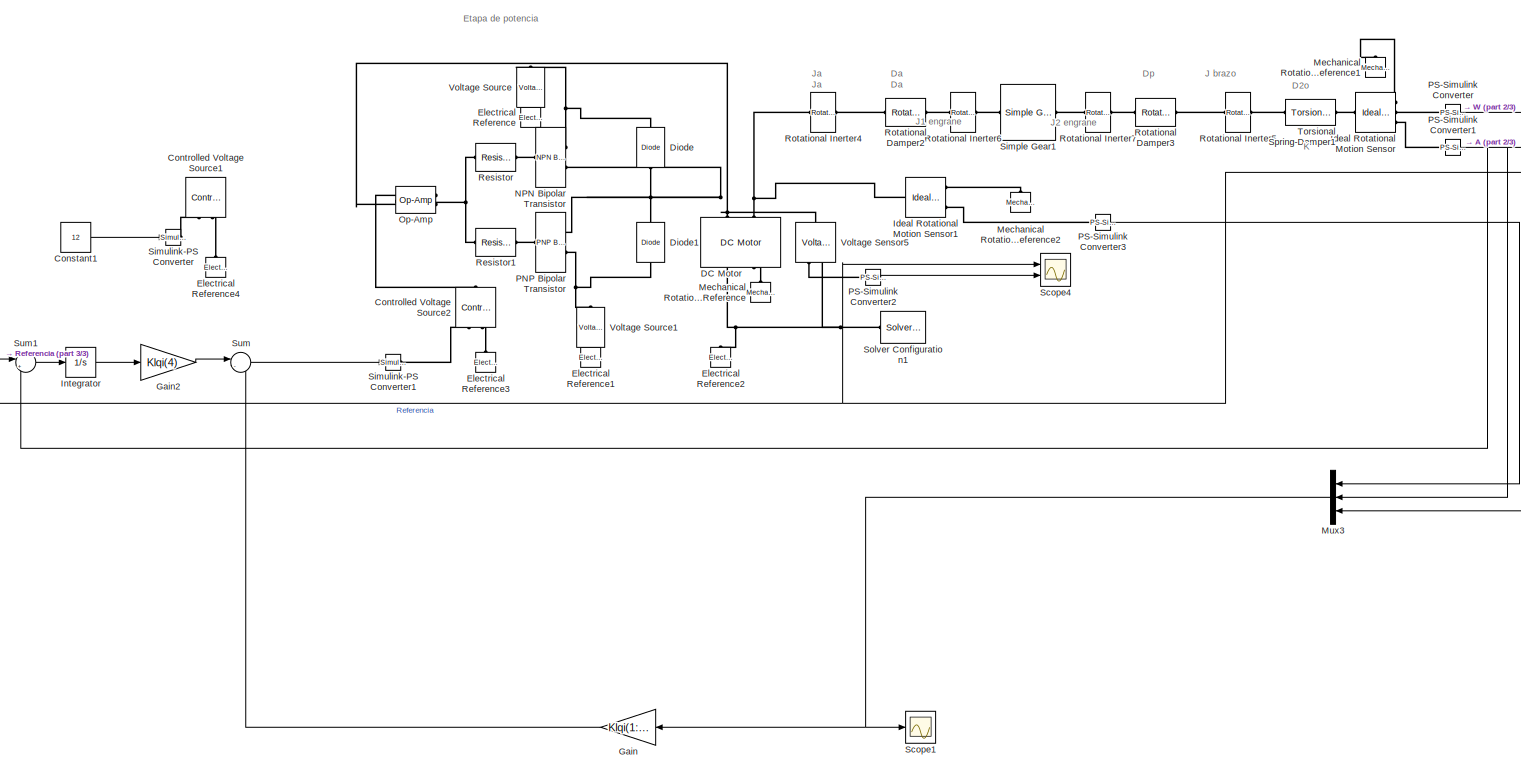
[diagram: root canvas - part 1/3, most of the canvas]
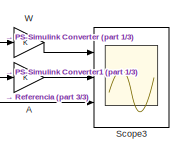
[diagram: root canvas - part 2/3, top right region]
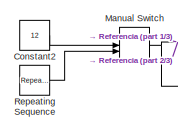
[diagram: root canvas - part 3/3, middle left region]
MODEL slx_32eb173f739a
KIND model
CONFIG AbsTol = auto
CONFIG EnableMultiTasking = off
CONFIG FixedStep = auto
CONFIG MaxStep = auto
CONFIG MinStep = auto
CONFIG RelTol = 1e-3
CONFIG SampleTimeConstraint = Unconstrained
CONFIG Solver = VariableStepAuto
CONFIG SolverName = VariableStepAuto
CONFIG StartTime = 0.0
CONFIG StopTime = 4
BLOCK [Gain] A
  OutDataTypeStr = Inherit: Inherit via internal rule
  ParamDataTypeStr = Inherit: Inherit via internal rule
  SaturateOnIntegerOverflow = off
BLOCK [Constant] Constant1
  Commented = on
  SampleTime = Ts
  Value = 12
BLOCK [Constant] Constant2
  SampleTime = Ts
  Value = 12
BLOCK [Reference] Controlled Voltage Source1  REF=fl_lib/Electrical/Electrical Sources/Controlled Voltage
Source
  Commented = on
  Ports = [0, 0, 0, 0, 0, 1, 2]
  SourceBlock = fl_lib/Electrical/Electrical Sources/Controlled Voltage\nSource
  SourceProductBaseCode = SS
  SourceProductName = Simscape
  SourceType = Controlled Voltage\nSource
BLOCK [Reference] Controlled Voltage Source2  REF=fl_lib/Electrical/Electrical Sources/Controlled Voltage
Source
  Ports = [0, 0, 0, 0, 0, 1, 2]
  SourceBlock = fl_lib/Electrical/Electrical Sources/Controlled Voltage\nSource
  SourceProductBaseCode = SS
  SourceProductName = Simscape
  SourceType = Controlled Voltage\nSource
BLOCK [Reference] DC Motor  REF=elec_lib/Actuators & Drivers/Rotational Actuators/DC Motor
  Ports = [0, 0, 0, 0, 0, 2, 2]
  SourceBlock = elec_lib/Actuators & Drivers/Rotational Actuators/DC Motor
  SourceProductBaseCode = SN
  SourceProductName = Simscape Electronics
  SourceType = DC Motor
BLOCK [Reference] Diode  REF=elec_lib/Semiconductor
Devices/Diode
  Ports = [0, 0, 0, 0, 0, 1, 1]
  SourceBlock = elec_lib/Semiconductor\nDevices/Diode
  SourceProductBaseCode = SN
  SourceProductName = Simscape Electronics
  SourceType = Diode
BLOCK [Reference] Diode1  REF=elec_lib/Semiconductor
Devices/Diode
  Ports = [0, 0, 0, 0, 0, 1, 1]
  SourceBlock = elec_lib/Semiconductor\nDevices/Diode
  SourceProductBaseCode = SN
  SourceProductName = Simscape Electronics
  SourceType = Diode
BLOCK [Reference] Electrical Reference  REF=fl_lib/Electrical/Electrical Elements/Electrical Reference
  Ports = [0, 0, 0, 0, 0, 1]
  SourceBlock = fl_lib/Electrical/Electrical Elements/Electrical Reference
  SourceProductBaseCode = SS
  SourceProductName = Simscape
  SourceType = Electrical Reference
BLOCK [Reference] Electrical Reference1  REF=fl_lib/Electrical/Electrical Elements/Electrical Reference
  Ports = [0, 0, 0, 0, 0, 1]
  SourceBlock = fl_lib/Electrical/Electrical Elements/Electrical Reference
  SourceProductBaseCode = SS
  SourceProductName = Simscape
  SourceType = Electrical Reference
BLOCK [Reference] Electrical Reference2  REF=fl_lib/Electrical/Electrical Elements/Electrical Reference
  Ports = [0, 0, 0, 0, 0, 1]
  SourceBlock = fl_lib/Electrical/Electrical Elements/Electrical Reference
  SourceProductBaseCode = SS
  SourceProductName = Simscape
  SourceType = Electrical Reference
BLOCK [Reference] Electrical Reference3  REF=fl_lib/Electrical/Electrical Elements/Electrical Reference
  Ports = [0, 0, 0, 0, 0, 1]
  SourceBlock = fl_lib/Electrical/Electrical Elements/Electrical Reference
  SourceProductBaseCode = SS
  SourceProductName = Simscape
  SourceType = Electrical Reference
BLOCK [Reference] Electrical Reference4  REF=fl_lib/Electrical/Electrical Elements/Electrical Reference
  Commented = on
  Ports = [0, 0, 0, 0, 0, 1]
  SourceBlock = fl_lib/Electrical/Electrical Elements/Electrical Reference
  SourceProductBaseCode = SS
  SourceProductName = Simscape
  SourceType = Electrical Reference
BLOCK [Gain] Gain
  Gain = Klqi(1:3)
  Multiplication = Matrix(K*u) (u vector)
  OutDataTypeStr = Inherit: Inherit via internal rule
  ParamDataTypeStr = Inherit: Inherit via internal rule
  SaturateOnIntegerOverflow = off
BLOCK [Gain] Gain2
  Gain = Klqi(4)
  OutDataTypeStr = Inherit: Inherit via internal rule
  ParamDataTypeStr = Inherit: Inherit via internal rule
  SaturateOnIntegerOverflow = off
BLOCK [Reference] Ideal Rotational Motion Sensor  REF=fl_lib/Mechanical/Mechanical Sensors/Ideal Rotational
Motion Sensor
  Ports = [0, 0, 0, 0, 0, 1, 3]
  SourceBlock = fl_lib/Mechanical/Mechanical Sensors/Ideal Rotational\nMotion Sensor
  SourceProductBaseCode = SS
  SourceProductName = Simscape
  SourceType = Ideal Rotational\nMotion Sensor
BLOCK [Reference] Ideal Rotational Motion Sensor1  REF=fl_lib/Mechanical/Mechanical Sensors/Ideal Rotational
Motion Sensor
  Ports = [0, 0, 0, 0, 0, 1, 3]
  SourceBlock = fl_lib/Mechanical/Mechanical Sensors/Ideal Rotational\nMotion Sensor
  SourceProductBaseCode = SS
  SourceProductName = Simscape
  SourceType = Ideal Rotational\nMotion Sensor
BLOCK [Integrator] Integrator
  Ports = [1, 1]
BLOCK [ManualSwitch] Manual Switch
BLOCK [Reference] Mechanical Rotational Reference  REF=fl_lib/Mechanical/Rotational Elements/Mechanical
Rotational Reference
  Ports = [0, 0, 0, 0, 0, 1]
  SourceBlock = fl_lib/Mechanical/Rotational Elements/Mechanical\nRotational Reference
  SourceProductBaseCode = SS
  SourceProductName = Simscape
  SourceType = Mechanical\nRotational Reference
BLOCK [Reference] Mechanical Rotational Reference1  REF=fl_lib/Mechanical/Rotational Elements/Mechanical
Rotational Reference
  Ports = [0, 0, 0, 0, 0, 1]
  SourceBlock = fl_lib/Mechanical/Rotational Elements/Mechanical\nRotational Reference
  SourceProductBaseCode = SS
  SourceProductName = Simscape
  SourceType = Mechanical\nRotational Reference
BLOCK [Reference] Mechanical Rotational Reference2  REF=fl_lib/Mechanical/Rotational Elements/Mechanical
Rotational Reference
  Ports = [0, 0, 0, 0, 0, 1]
  SourceBlock = fl_lib/Mechanical/Rotational Elements/Mechanical\nRotational Reference
  SourceProductBaseCode = SS
  SourceProductName = Simscape
  SourceType = Mechanical\nRotational Reference
BLOCK [Mux] Mux3
  DisplayOption = bar
  Inputs = 3
  Ports = [3, 1]
BLOCK [Reference] NPN Bipolar Transistor  REF=elec_lib/Semiconductor
Devices/NPN Bipolar
Transistor
  Ports = [0, 0, 0, 0, 0, 1, 2]
  SourceBlock = elec_lib/Semiconductor\nDevices/NPN Bipolar\nTransistor
  SourceProductBaseCode = SN
  SourceProductName = Simscape Electronics
  SourceType = NPN Bipolar\nTransistor
BLOCK [Reference] Op-Amp  REF=fl_lib/Electrical/Electrical Elements/Op-Amp
  Ports = [0, 0, 0, 0, 0, 2, 1]
  SourceBlock = fl_lib/Electrical/Electrical Elements/Op-Amp
  SourceProductBaseCode = SS
  SourceProductName = Simscape
  SourceType = Op-Amp
BLOCK [Reference] PNP Bipolar Transistor  REF=elec_lib/Semiconductor
Devices/PNP Bipolar
Transistor
  Ports = [0, 0, 0, 0, 0, 1, 2]
  SourceBlock = elec_lib/Semiconductor\nDevices/PNP Bipolar\nTransistor
  SourceProductBaseCode = SN
  SourceProductName = Simscape Electronics
  SourceType = PNP Bipolar\nTransistor
BLOCK [Reference] PS-Simulink Converter  REF=nesl_utility/PS-Simulink
Converter
  Ports = [0, 1, 0, 0, 0, 1]
  SourceBlock = nesl_utility/PS-Simulink\nConverter
  SourceProductBaseCode = SS
  SourceProductName = Simscape
  SourceType = PS-Simulink\nConverter
BLOCK [Reference] PS-Simulink Converter1  REF=nesl_utility/PS-Simulink
Converter
  Ports = [0, 1, 0, 0, 0, 1]
  SourceBlock = nesl_utility/PS-Simulink\nConverter
  SourceProductBaseCode = SS
  SourceProductName = Simscape
  SourceType = PS-Simulink\nConverter
BLOCK [Reference] PS-Simulink Converter2  REF=nesl_utility/PS-Simulink
Converter
  Ports = [0, 1, 0, 0, 0, 1]
  SourceBlock = nesl_utility/PS-Simulink\nConverter
  SourceProductBaseCode = SS
  SourceProductName = Simscape
  SourceType = PS-Simulink\nConverter
BLOCK [Reference] PS-Simulink Converter3  REF=nesl_utility/PS-Simulink
Converter
  Ports = [0, 1, 0, 0, 0, 1]
  SourceBlock = nesl_utility/PS-Simulink\nConverter
  SourceProductBaseCode = SS
  SourceProductName = Simscape
  SourceType = PS-Simulink\nConverter
BLOCK [Reference] Repeating Sequence  REF=simulink/Sources/Repeating
Sequence
  Ports = [0, 1]
  SourceBlock = simulink/Sources/Repeating\nSequence
  SourceProductBaseCode = SL
  SourceProductName = Simulink
  SourceType = Repeating table
BLOCK [Reference] Resistor  REF=elec_lib/Passive Devices/Resistor
  Ports = [0, 0, 0, 0, 0, 1, 1]
  SourceBlock = elec_lib/Passive Devices/Resistor
  SourceProductBaseCode = SN
  SourceProductName = Simscape Electronics
  SourceType = Resistor
BLOCK [Reference] Resistor1  REF=elec_lib/Passive Devices/Resistor
  Ports = [0, 0, 0, 0, 0, 1, 1]
  SourceBlock = elec_lib/Passive Devices/Resistor
  SourceProductBaseCode = SN
  SourceProductName = Simscape Electronics
  SourceType = Resistor
BLOCK [Reference] Rotational Damper2  REF=sdl_lib/Couplings & Drives/Springs & Dampers/Rotational Damper
  Ports = [0, 0, 0, 0, 0, 1, 1]
  SourceBlock = sdl_lib/Couplings & Drives/Springs & Dampers/Rotational Damper
  SourceProductBaseCode = LD
  SourceProductName = Simscape Driveline
  SourceType = Rotational Damper
BLOCK [Reference] Rotational Damper3  REF=sdl_lib/Couplings & Drives/Springs & Dampers/Rotational Damper
  Ports = [0, 0, 0, 0, 0, 1, 1]
  SourceBlock = sdl_lib/Couplings & Drives/Springs & Dampers/Rotational Damper
  SourceProductBaseCode = LD
  SourceProductName = Simscape Driveline
  SourceType = Rotational Damper
BLOCK [Reference] Rotational Inerter4  REF=fl_lib/Mechanical/Rotational Elements/Rotational Inerter
  Ports = [0, 0, 0, 0, 0, 1, 1]
  SourceBlock = fl_lib/Mechanical/Rotational Elements/Rotational Inerter
  SourceProductBaseCode = SS
  SourceProductName = Simscape
  SourceType = Rotational Inerter
BLOCK [Reference] Rotational Inerter5  REF=fl_lib/Mechanical/Rotational Elements/Rotational Inerter
  Ports = [0, 0, 0, 0, 0, 1, 1]
  SourceBlock = fl_lib/Mechanical/Rotational Elements/Rotational Inerter
  SourceProductBaseCode = SS
  SourceProductName = Simscape
  SourceType = Rotational Inerter
BLOCK [Reference] Rotational Inerter6  REF=fl_lib/Mechanical/Rotational Elements/Rotational Inerter
  Ports = [0, 0, 0, 0, 0, 1, 1]
  SourceBlock = fl_lib/Mechanical/Rotational Elements/Rotational Inerter
  SourceProductBaseCode = SS
  SourceProductName = Simscape
  SourceType = Rotational Inerter
BLOCK [Reference] Rotational Inerter7  REF=fl_lib/Mechanical/Rotational Elements/Rotational Inerter
  Ports = [0, 0, 0, 0, 0, 1, 1]
  SourceBlock = fl_lib/Mechanical/Rotational Elements/Rotational Inerter
  SourceProductBaseCode = SS
  SourceProductName = Simscape
  SourceType = Rotational Inerter
BLOCK [Scope] Scope1
  NumInputPorts = 1
  Ports = [1]
  ScopeSpecificationString = Simulink.scopes.TimeScopeBlockCfg('CurrentConfiguration', extmgr.ConfigurationSet(extmgr.Configuration('Core','General UI',true),extmgr.Configuration('Core','Source UI',true),extmgr.Configuration('Sources','WiredSimulink',true,'DataLoggingVariableName','ScopeData3'),extmgr.Configuration('Visuals','Time Domain',true,'SerializedDisplays',{struct('MinYLimReal','-6.32407','MaxYLimReal','37.22958','YLa...<+1528ch>
BLOCK [Scope] Scope3
  NumInputPorts = 3
  Ports = [3]
  ScopeSpecificationString = Simulink.scopes.TimeScopeBlockCfg('CurrentConfiguration', extmgr.ConfigurationSet(extmgr.Configuration('Core','General UI',true),extmgr.Configuration('Core','Source UI',true),extmgr.Configuration('Sources','WiredSimulink',true,'DataLoggingVariableName','ScopeData1','SampleTime','Ts'),extmgr.Configuration('Visuals','Time Domain',true,'SerializedDisplays',{struct('MinYLimReal','-1.5','MaxYLimReal','...<+1474ch>
BLOCK [Scope] Scope4
  NumInputPorts = 2
  Ports = [2]
  ScopeSpecificationString = Simulink.scopes.TimeScopeBlockCfg('CurrentConfiguration', extmgr.ConfigurationSet(extmgr.Configuration('Core','General UI',true),extmgr.Configuration('Core','Source UI',true),extmgr.Configuration('Sources','WiredSimulink',true),extmgr.Configuration('Visuals','Time Domain',true,'SerializedDisplays',{struct('MinYLimReal','-4938.73897','MaxYLimReal','44448.65071','YLabelReal','','MinYLimMag','  0.000...<+1436ch>
BLOCK [Reference] Simple Gear1  REF=sdl_lib/Gears/Simple Gear
  Ports = [0, 0, 0, 0, 0, 1, 1]
  SourceBlock = sdl_lib/Gears/Simple Gear
  SourceProductBaseCode = LD
  SourceProductName = Simscape Driveline
  SourceType = Simple Gear
BLOCK [Reference] Simulink-PS Converter  REF=nesl_utility/Simulink-PS
Converter
  Commented = on
  Ports = [1, 0, 0, 0, 0, 0, 1]
  SourceBlock = nesl_utility/Simulink-PS\nConverter
  SourceProductBaseCode = SS
  SourceProductName = Simscape
  SourceType = Simulink-PS\nConverter
BLOCK [Reference] Simulink-PS Converter1  REF=nesl_utility/Simulink-PS
Converter
  Ports = [1, 0, 0, 0, 0, 0, 1]
  SourceBlock = nesl_utility/Simulink-PS\nConverter
  SourceProductBaseCode = SS
  SourceProductName = Simscape
  SourceType = Simulink-PS\nConverter
BLOCK [Reference] Solver Configuration1  REF=nesl_utility/Solver
Configuration
  Ports = [0, 0, 0, 0, 0, 0, 1]
  SourceBlock = nesl_utility/Solver\nConfiguration
  SourceProductBaseCode = SS
  SourceProductName = Simscape
  SourceType = Solver\nConfiguration
BLOCK [Sum] Sum
  IconShape = round
  InputSameDT = off
  Inputs = |--
  OutDataTypeStr = Inherit: Inherit via internal rule
  Ports = [2, 1]
  SaturateOnIntegerOverflow = off
BLOCK [Sum] Sum1
  IconShape = round
  InputSameDT = off
  Inputs = |+-
  OutDataTypeStr = Inherit: Inherit via internal rule
  Ports = [2, 1]
  SaturateOnIntegerOverflow = off
BLOCK [Reference] Torsional Spring-Damper1  REF=sdl_lib/Couplings & Drives/Torsional
Spring-Damper
  Ports = [0, 0, 0, 0, 0, 1, 1]
  SourceBlock = sdl_lib/Couplings & Drives/Torsional\nSpring-Damper
  SourceProductBaseCode = LD
  SourceProductName = Simscape Driveline
  SourceType = Torsional\nSpring-Damper
BLOCK [Reference] Voltage Sensor5  REF=fl_lib/Electrical/Electrical Sensors/Voltage Sensor
  Ports = [0, 0, 0, 0, 0, 1, 2]
  SourceBlock = fl_lib/Electrical/Electrical Sensors/Voltage Sensor
  SourceProductBaseCode = SS
  SourceProductName = Simscape
  SourceType = Voltage Sensor
BLOCK [Reference] Voltage Source  REF=elec_lib/Sources/Voltage Source
  Ports = [0, 0, 0, 0, 0, 1, 1]
  SourceBlock = elec_lib/Sources/Voltage Source
  SourceProductBaseCode = SN
  SourceProductName = Simscape Electronics
  SourceType = Voltage Source
BLOCK [Reference] Voltage Source1  REF=elec_lib/Sources/Voltage Source
  Ports = [0, 0, 0, 0, 0, 1, 1]
  SourceBlock = elec_lib/Sources/Voltage Source
  SourceProductBaseCode = SN
  SourceProductName = Simscape Electronics
  SourceType = Voltage Source
BLOCK [Gain] W
  OutDataTypeStr = Inherit: Inherit via internal rule
  ParamDataTypeStr = Inherit: Inherit via internal rule
  SaturateOnIntegerOverflow = off
ANNOTATION (root): D2o
ANNOTATION (root): Da Da
ANNOTATION (root): Dp
ANNOTATION (root): Etapa de potencia
ANNOTATION (root): J brazo
ANNOTATION (root): J1 engrane
ANNOTATION (root): J2 engrane
ANNOTATION (root): Ja Ja
ANNOTATION (root): K
LINE A:1 -> Scope3:2
LINE Constant1:1 -> Simulink-PS Converter:1
LINE Constant2:1 -> Manual Switch:1
LINE Gain2:1 -> Sum:1
LINE Gain:1 -> Sum:2
LINE Integrator:1 -> Gain2:1
NET Manual Switch:1 -> Scope3:3, Scope4:1, Sum1:1
NET Mux3:1 -> Gain:1, Scope1:1
NET PS-Simulink Converter1:1 -> A:1, Mux3:2, Sum1:2
LINE PS-Simulink Converter2:1 -> Scope4:2
LINE PS-Simulink Converter3:1 -> Mux3:1
NET PS-Simulink Converter:1 -> Mux3:3, W:1
LINE Repeating Sequence:1 -> Manual Switch:2
LINE Sum1:1 -> Integrator:1
LINE Sum:1 -> Simulink-PS Converter1:1
LINE W:1 -> Scope3:1
PLINE Controlled Voltage Source1:RConn1 -- Simulink-PS Converter:RConn1
PLINE Controlled Voltage Source1:RConn2 -- Electrical Reference4:LConn1
PLINE Controlled Voltage Source2:LConn1 -- Op-Amp:LConn1
PLINE Controlled Voltage Source2:RConn1 -- Simulink-PS Converter1:RConn1
PLINE Controlled Voltage Source2:RConn2 -- Electrical Reference3:LConn1
PNET net1: DC Motor:LConn1 -- Diode1:RConn1 -- Diode:LConn1 -- NPN Bipolar Transistor:RConn2 -- Op-Amp:LConn2 -- PNP Bipolar Transistor:RConn1 -- Voltage Sensor5:LConn1
PNET net2: DC Motor:LConn2 -- Ideal Rotational Motion Sensor1:LConn1 -- Rotational Inerter4:LConn1
PNET net3: DC Motor:RConn1 -- Electrical Reference2:LConn1 -- Solver Configuration1:RConn1 -- Voltage Sensor5:RConn2
PLINE DC Motor:RConn2 -- Mechanical Rotational Reference:LConn1
PNET net4: Diode1:LConn1 -- PNP Bipolar Transistor:RConn2 -- Voltage Source1:LConn1
PNET net5: Diode:RConn1 -- NPN Bipolar Transistor:RConn1 -- Voltage Source:LConn1
PLINE Electrical Reference1:LConn1 -- Voltage Source1:RConn1
PLINE Electrical Reference:LConn1 -- Voltage Source:RConn1
PLINE Ideal Rotational Motion Sensor1:RConn1 -- Mechanical Rotational Reference2:LConn1
PLINE Ideal Rotational Motion Sensor1:RConn3 -- PS-Simulink Converter3:LConn1
PLINE Ideal Rotational Motion Sensor:LConn1 -- Torsional Spring-Damper1:RConn1
PLINE Ideal Rotational Motion Sensor:RConn1 -- Mechanical Rotational Reference1:LConn1
PLINE Ideal Rotational Motion Sensor:RConn2 -- PS-Simulink Converter:LConn1
PLINE Ideal Rotational Motion Sensor:RConn3 -- PS-Simulink Converter1:LConn1
PLINE NPN Bipolar Transistor:LConn1 -- Resistor:RConn1
PNET net6: Op-Amp:RConn1 -- Resistor1:LConn1 -- Resistor:LConn1
PLINE PNP Bipolar Transistor:LConn1 -- Resistor1:RConn1
PLINE PS-Simulink Converter2:LConn1 -- Voltage Sensor5:RConn1
PLINE Rotational Damper2:LConn1 -- Rotational Inerter4:RConn1
PLINE Rotational Damper2:RConn1 -- Rotational Inerter6:LConn1
PLINE Rotational Damper3:LConn1 -- Rotational Inerter7:RConn1
PLINE Rotational Damper3:RConn1 -- Rotational Inerter5:LConn1
PLINE Rotational Inerter5:RConn1 -- Torsional Spring-Damper1:LConn1
PLINE Rotational Inerter6:RConn1 -- Simple Gear1:LConn1
PLINE Rotational Inerter7:LConn1 -- Simple Gear1:RConn1
note: NET lines group one-source signal fan-out (src -> all destinations, sorted); 1:1 wires keep LINE; PNET lines group multi-terminal physical nets as a canonical sorted terminal list (undirected conserving connections); 2-terminal nets keep the pairwise PLINE form
